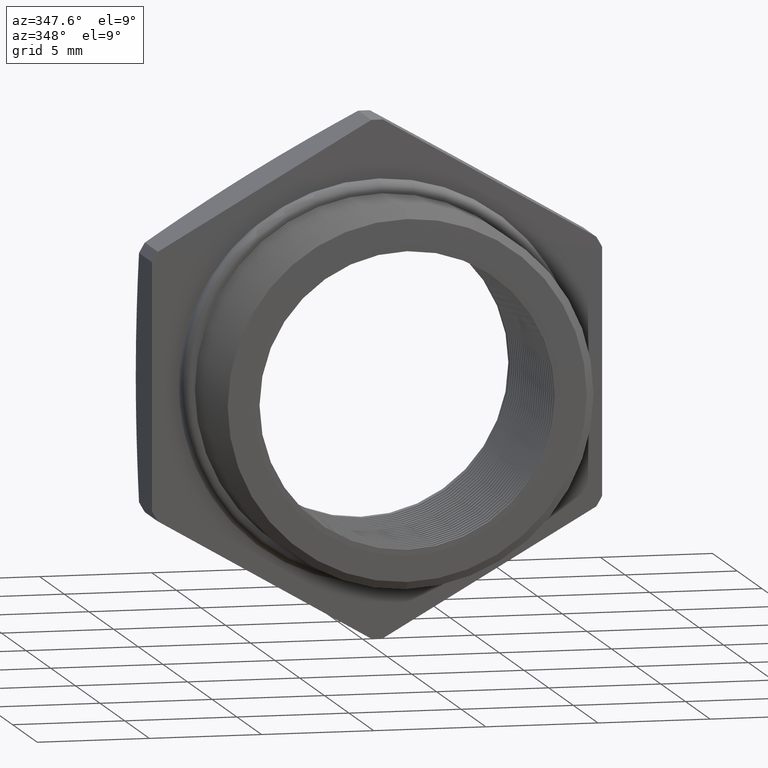
[diagram: clean part render]
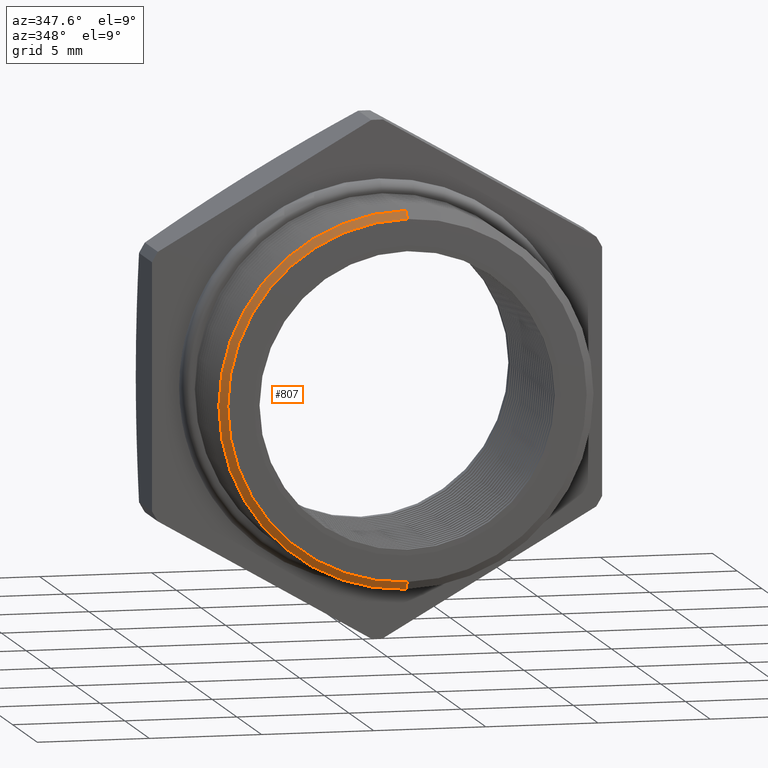
[diagram: same view with one face highlighted and labeled with its STEP entity id]
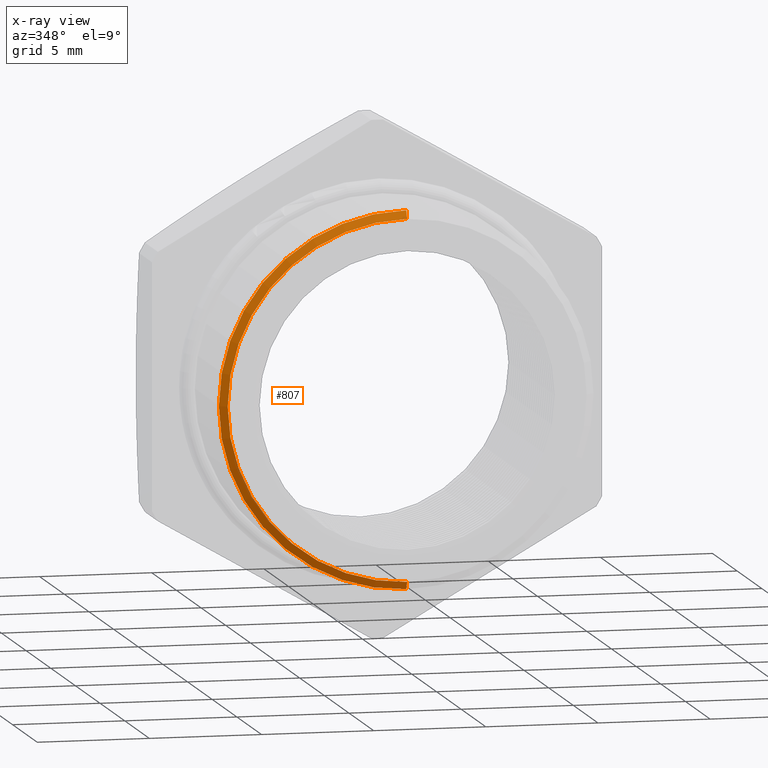
[diagram: x-ray of the same camera — body ghosted, the highlighted face saturated]
A machine part, auxiliary view. The second image highlights one B-rep face of the part: STEP entity #807.
The next image is the same camera in x-ray: the body ghosted, the highlighted face saturated — about 0% of this face is hidden behind the body in this view.
In plain terms, the highlighted conical surface has half-angle 60 deg.
Its self-contained STEP definition (entity closure, byte-faithful):
#788 = ORIENTED_EDGE ( 'NONE', *, *, #1417, .T. ) ;
#789 = ORIENTED_EDGE ( 'NONE', *, *, #801, .F. ) ;
#801 = EDGE_CURVE ( 'NONE', #1412, #1415, #3586, .T. ) ;
#807 = ADVANCED_FACE ( 'NONE', ( #3579 ), #3574, .T. ) ;
#808 = EDGE_LOOP ( 'NONE', ( #809, #810, #788, #789 ) ) ;
#809 = ORIENTED_EDGE ( 'NONE', *, *, #1411, .F. ) ;
#810 = ORIENTED_EDGE ( 'NONE', *, *, #1421, .T. ) ;
#1409 = VERTEX_POINT ( 'NONE', #4555 ) ;
#1411 = EDGE_CURVE ( 'NONE', #1409, #1412, #4554, .T. ) ;
#1412 = VERTEX_POINT ( 'NONE', #4550 ) ;
#1415 = VERTEX_POINT ( 'NONE', #4544 ) ;
#1417 = EDGE_CURVE ( 'NONE', #1438, #1415, #4543, .T. ) ;
#1421 = EDGE_CURVE ( 'NONE', #1409, #1438, #4600, .T. ) ;
#1438 = VERTEX_POINT ( 'NONE', #4624 ) ;
#3569 = DIRECTION ( 'NONE',  ( 0.0000000000000000000, 0.0000000000000000000, 1.000000000000000000 ) ) ;
#3570 = DIRECTION ( 'NONE',  ( -0.0000000000000000000, 1.000000000000000000, -0.0000000000000000000 ) ) ;
#3571 = CARTESIAN_POINT ( 'NONE',  ( 0.0000000000000000000, 0.04543489058294798000, 0.0000000000000000000 ) ) ;
#3572 = AXIS2_PLACEMENT_3D ( 'NONE', #3571, #3570, #3569 ) ;
#3574 = CONICAL_SURFACE ( 'NONE', #3572, 0.3287738815610546400, 1.047197551196598700 ) ;
#3579 = FACE_OUTER_BOUND ( 'NONE', #808, .T. ) ;
#3582 = DIRECTION ( 'NONE',  ( 0.0000000000000000000, 0.0000000000000000000, 1.000000000000000000 ) ) ;
#3583 = DIRECTION ( 'NONE',  ( -0.0000000000000000000, 1.000000000000000000, -0.0000000000000000000 ) ) ;
#3584 = CARTESIAN_POINT ( 'NONE',  ( 0.0000000000000000000, 0.04543489058294798000, 0.0000000000000000000 ) ) ;
#3585 = AXIS2_PLACEMENT_3D ( 'NONE', #3584, #3583, #3582 ) ;
#3586 = CIRCLE ( 'NONE', #3585, 0.3287738815610546400 ) ;
#4540 = DIRECTION ( 'NONE',  ( 0.0000000000000000000, 0.4999999999999991100, 0.8660254037844391500 ) ) ;
#4541 = VECTOR ( 'NONE', #4540, 39.37007874015748100 ) ;
#4542 = CARTESIAN_POINT ( 'NONE',  ( 0.0000000000000000000, 0.04543489058294798000, 0.3287738815610546400 ) ) ;
#4543 = LINE ( 'NONE', #4542, #4541 ) ;
#4544 = CARTESIAN_POINT ( 'NONE',  ( 4.026318816969966200E-017, 0.04543489058294798000, 0.3287738815610546400 ) ) ;
#4550 = CARTESIAN_POINT ( 'NONE',  ( 0.0000000000000000000, 0.04543489058294798000, -0.3287738815610546400 ) ) ;
#4551 = DIRECTION ( 'NONE',  ( 1.060575238724907500E-016, 0.4999999999999991100, -0.8660254037844391500 ) ) ;
#4552 = VECTOR ( 'NONE', #4551, 39.37007874015748100 ) ;
#4553 = CARTESIAN_POINT ( 'NONE',  ( 4.026318816969965600E-017, 0.04543489058294798000, -0.3287738815610546400 ) ) ;
#4554 = LINE ( 'NONE', #4553, #4552 ) ;
#4555 = CARTESIAN_POINT ( 'NONE',  ( 3.857637417314162700E-017, 0.03748253635588706700, -0.3150000000000000000 ) ) ;
#4593 = DIRECTION ( 'NONE',  ( 0.0000000000000000000, 0.0000000000000000000, 1.000000000000000000 ) ) ;
#4594 = DIRECTION ( 'NONE',  ( -0.0000000000000000000, 1.000000000000000000, -0.0000000000000000000 ) ) ;
#4595 = CARTESIAN_POINT ( 'NONE',  ( 0.0000000000000000000, 0.03748253635588706700, 0.0000000000000000000 ) ) ;
#4596 = AXIS2_PLACEMENT_3D ( 'NONE', #4595, #4594, #4593 ) ;
#4600 = CIRCLE ( 'NONE', #4596, 0.3150000000000000000 ) ;
#4624 = CARTESIAN_POINT ( 'NONE',  ( 0.0000000000000000000, 0.03748253635588706700, 0.3150000000000000000 ) ) ;